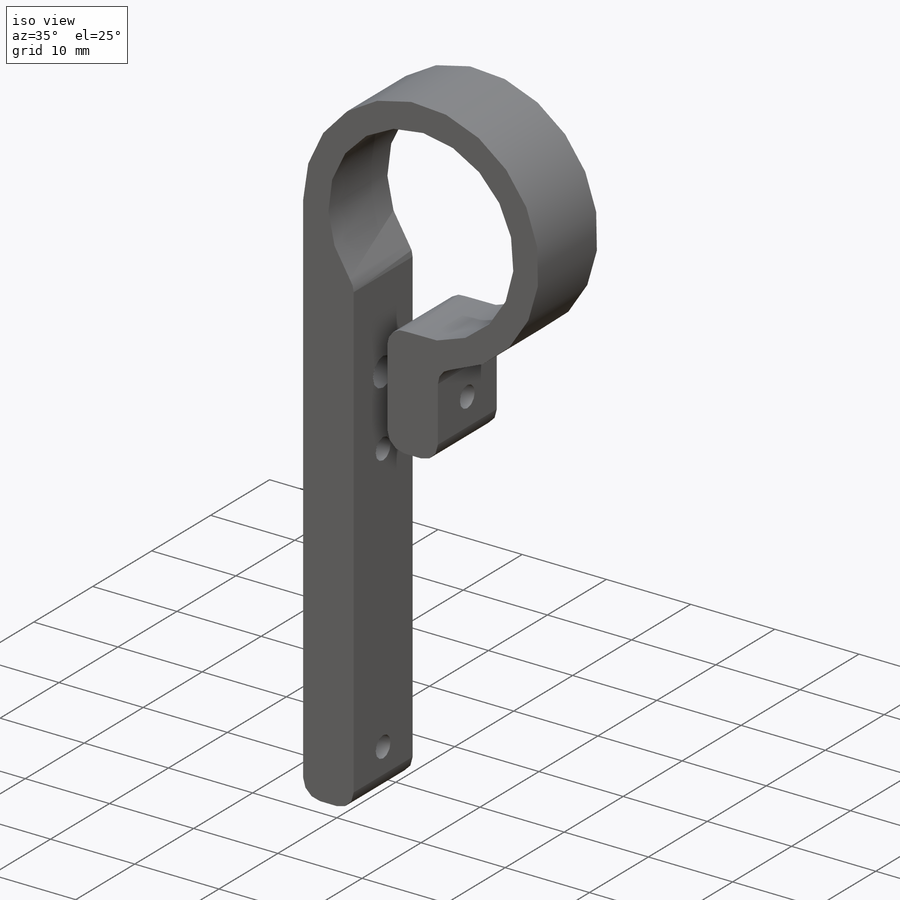
[diagram: iso view]
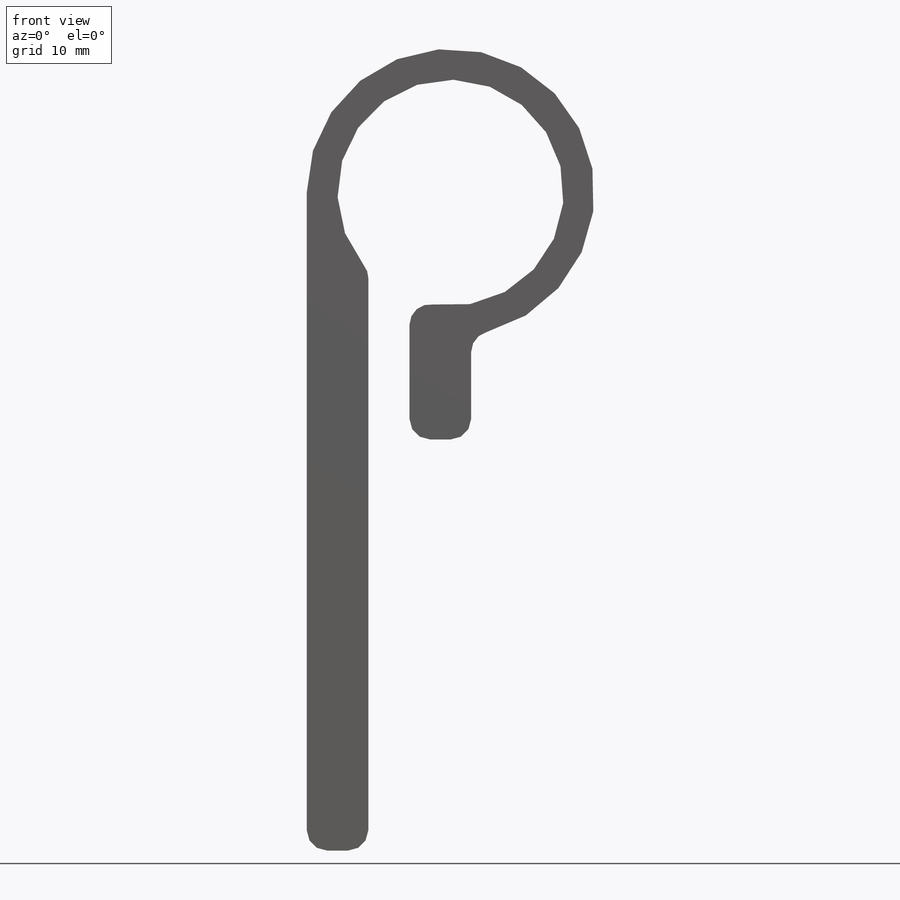
[diagram: front view]
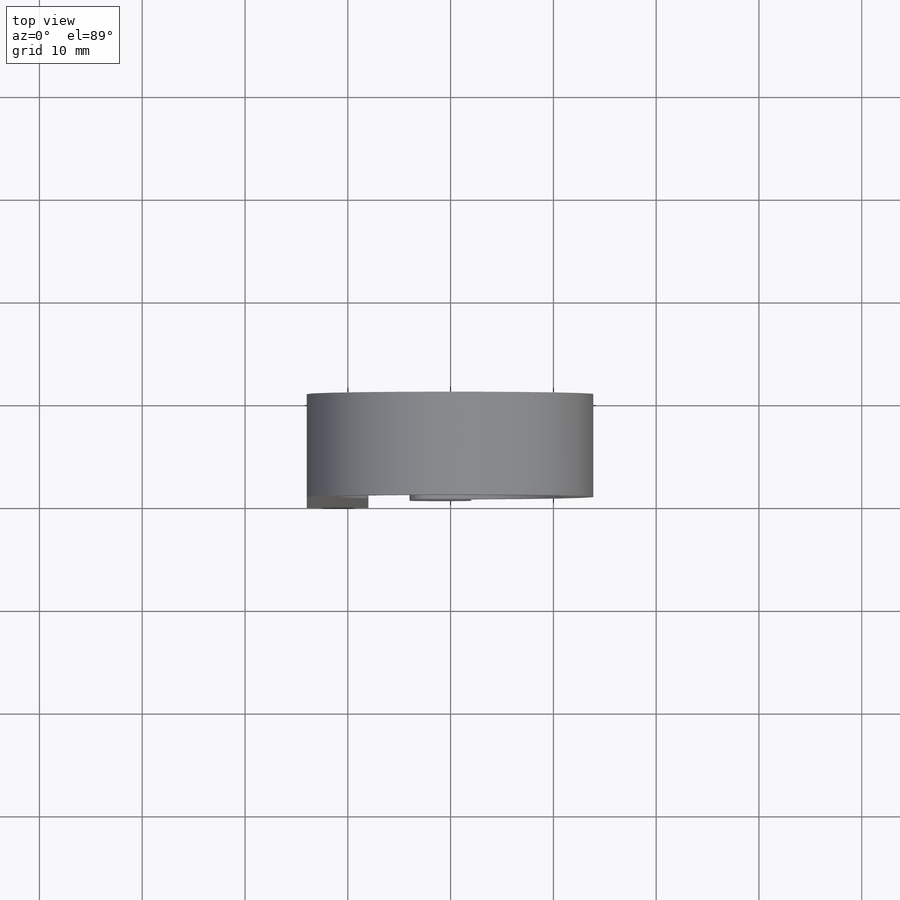
[diagram: top view]
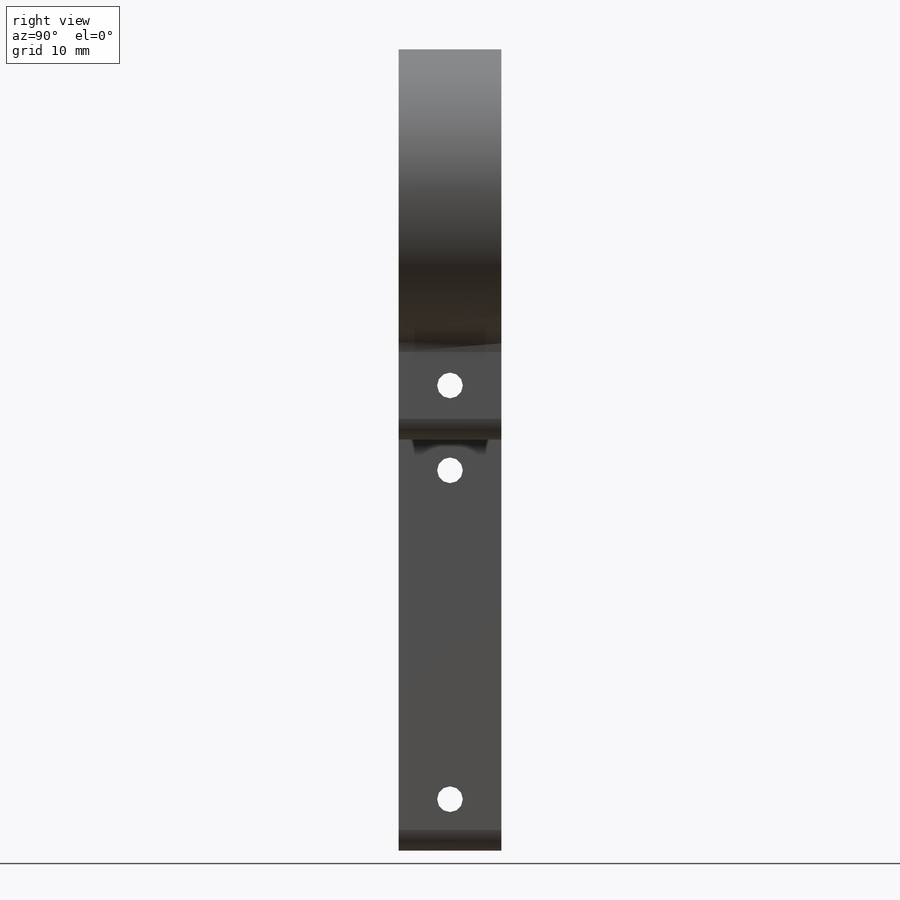
[diagram: right view]
SOLIDWORKS PART (.sldprt)
format: sldprt  version: not decoded by parser v0  size: 317,440 bytes
history: native  units: mm
features: plane x3, hole x3, thread x3, material x1, sketch x1, extrude x1, fillet x1 + 8 further entries (+8 scaffold rows collapsed)
feature tree (29):
  scaffold x8  (default folders/planes/origin — collapsed)
  material  "Сплав 2024"
  plane  "Спереди"
  plane  "Сверху"
  plane  "Справа"
  sketch  "Эскиз1"  dims[D1=22.0mm D2=28.0mm D3=6.0mm D4=4.0mm D5=6.0mm D6=50.0mm D7=10.0mm]
  extrude  "Бобышка-Вытянуть1"  Depth=10mm
  fillet  "Скругление1"  Radius=2mm
  "Эскиз2"
  hole  "Цековка для винта с внутренним шестигранником M31"  [1 undecoded]
  "Эскиз4"
  "Эскиз3"  4=25.4mm Диаметр сквозного отверстия=3.4mm Глубина сквозного отверстия=6mm Диаметр цековки=6.5mm Глубина цековки=3mm
  hole  "Отверстие обработанное метчиком M3x0.51"  [1 undecoded]
  "Эскиз6"
  "Эскиз5"  4=25.4mm Диаметр проходного сверла=2.5mm Глубина проходного сверла=6mm
  thread  "Отверстие резьбы1"  Diameter=3mm  [1 undecoded]
  "Эскиз8"
  hole  "Отверстие обработанное метчиком M3x0.52"  [1 undecoded]
  "Эскиз10"
  "Эскиз9"  4=25.4mm Диаметр проходного сверла=2.5mm Глубина проходного сверла=28mm
  thread  "Отверстие резьбы2"  Diameter=3mm  [1 undecoded]
  thread  "Отверстие резьбы3"  Diameter=3mm  [1 undecoded]
decode coverage: 6 of 9 modeling features carry decoded parameters; 8 rows unclassified (native names shown)
note: 6 parameter values undecoded
summary: no parameter record found for 3 features
note: suppression state not decoded; provenance and decode notes live in map.json
